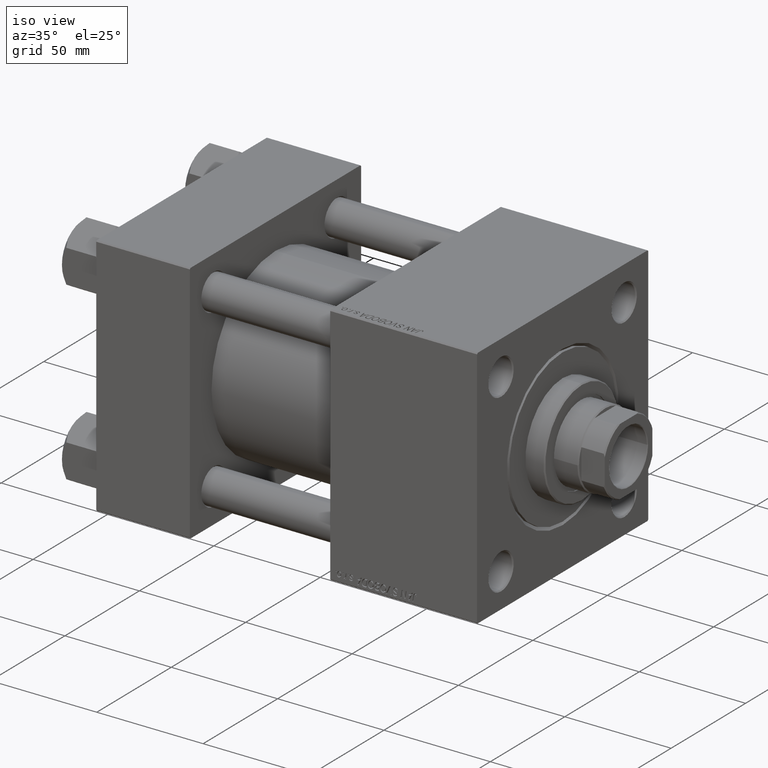
[diagram: clean part render]
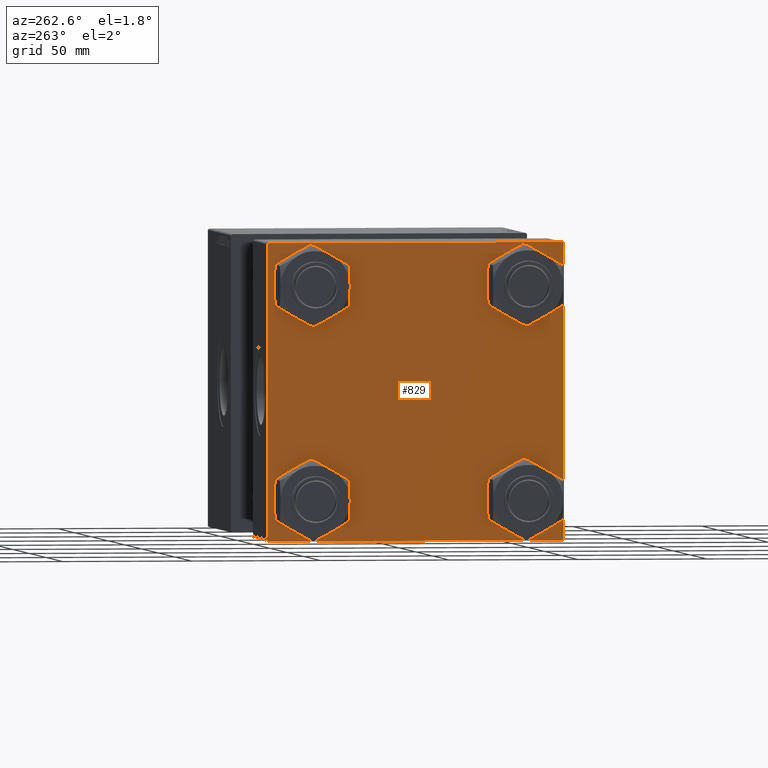
[diagram: tour spotlight — one face highlighted and labeled with its STEP entity id]
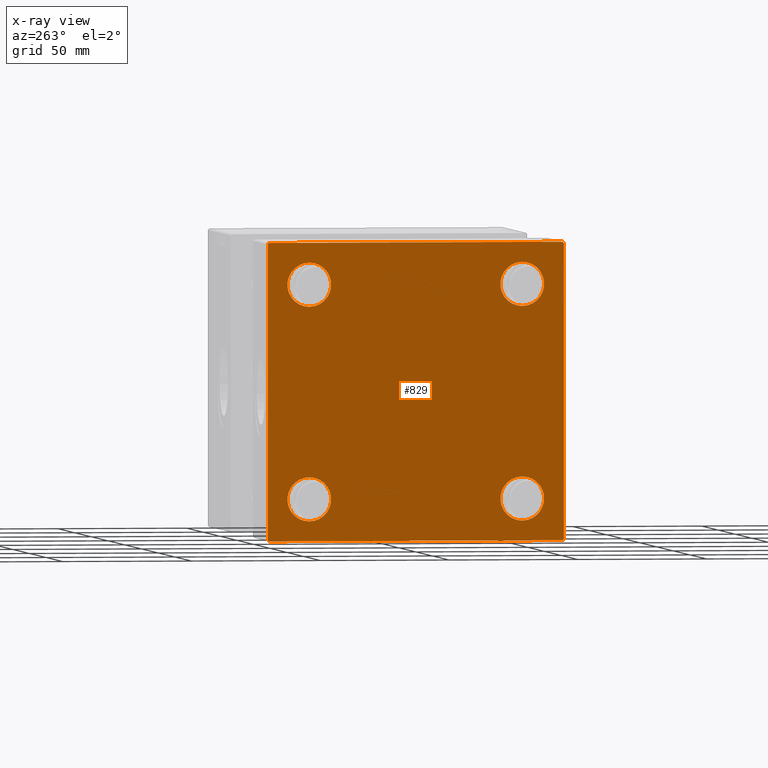
[diagram: x-ray of the same camera — body ghosted, this tour face saturated]
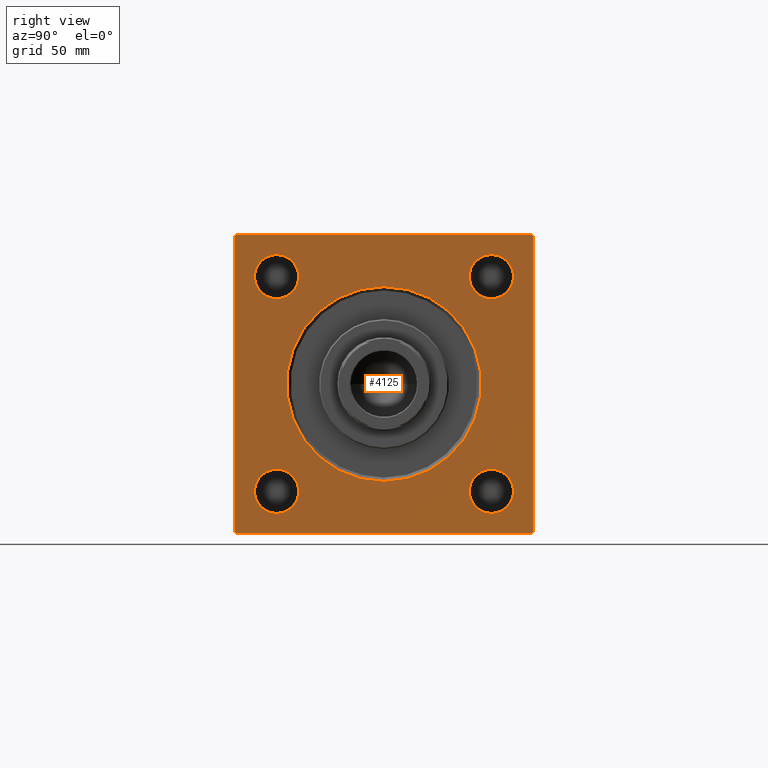
[diagram: tour spotlight — one face highlighted and labeled with its STEP entity id]
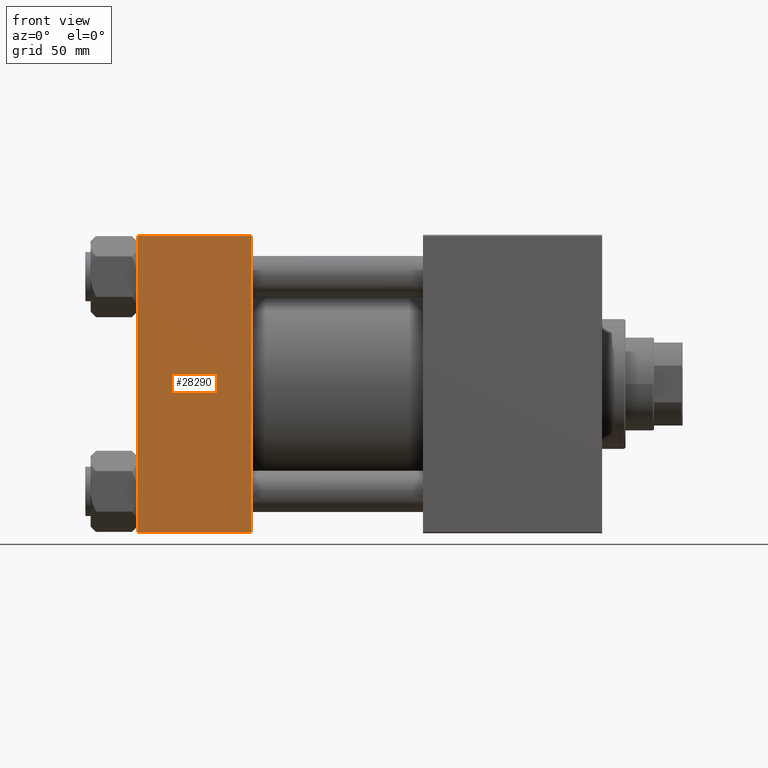
[diagram: tour spotlight — one face highlighted and labeled with its STEP entity id]
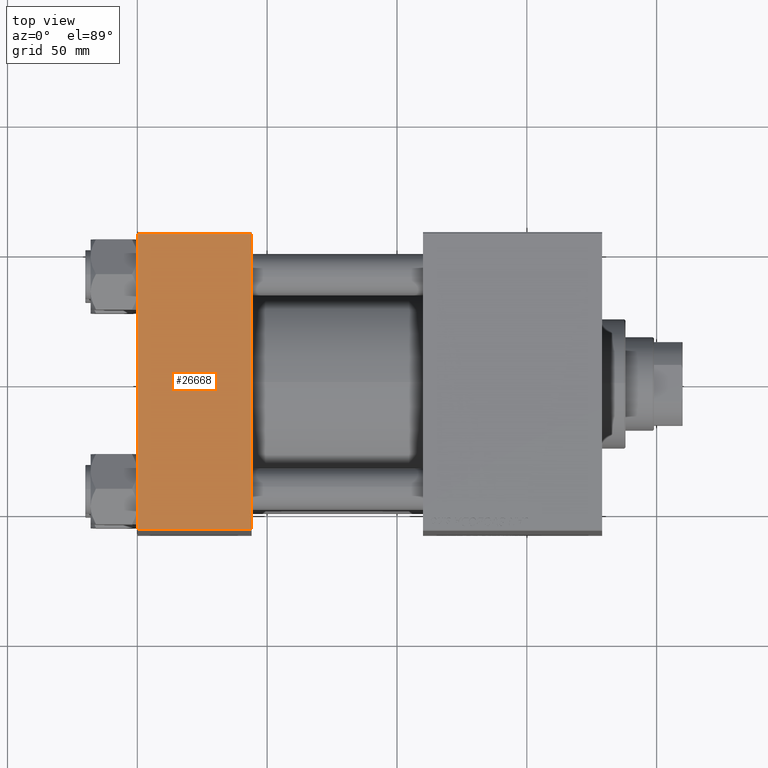
[diagram: tour spotlight — one face highlighted and labeled with its STEP entity id]
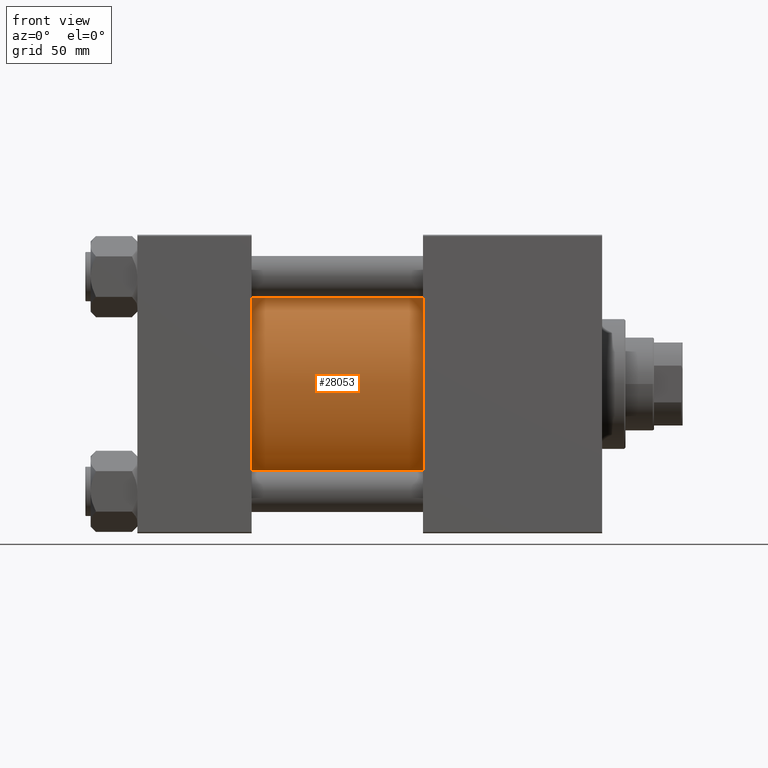
[diagram: tour spotlight — one face highlighted and labeled with its STEP entity id]
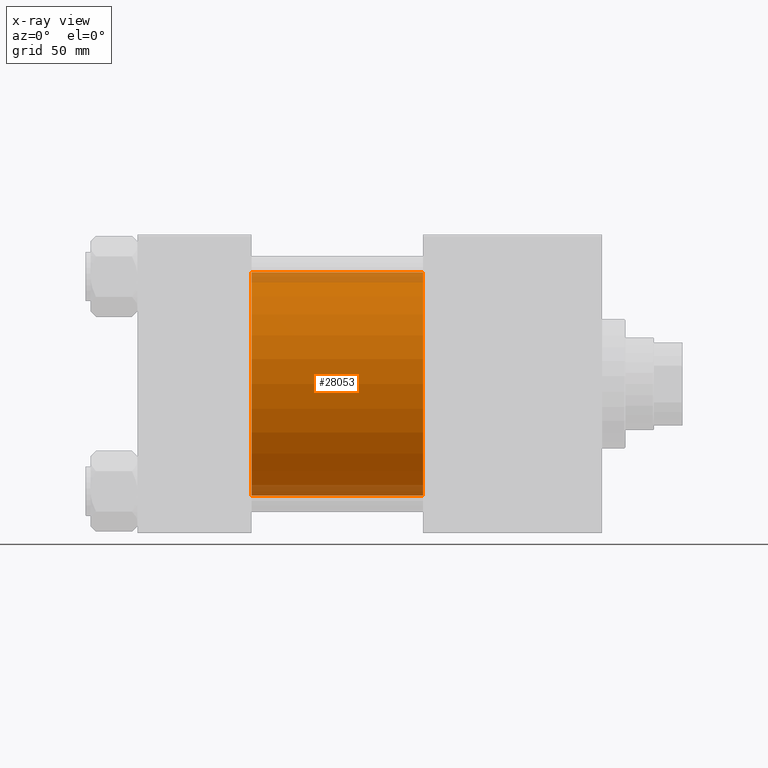
[diagram: x-ray of the same camera — body ghosted, this tour face saturated]
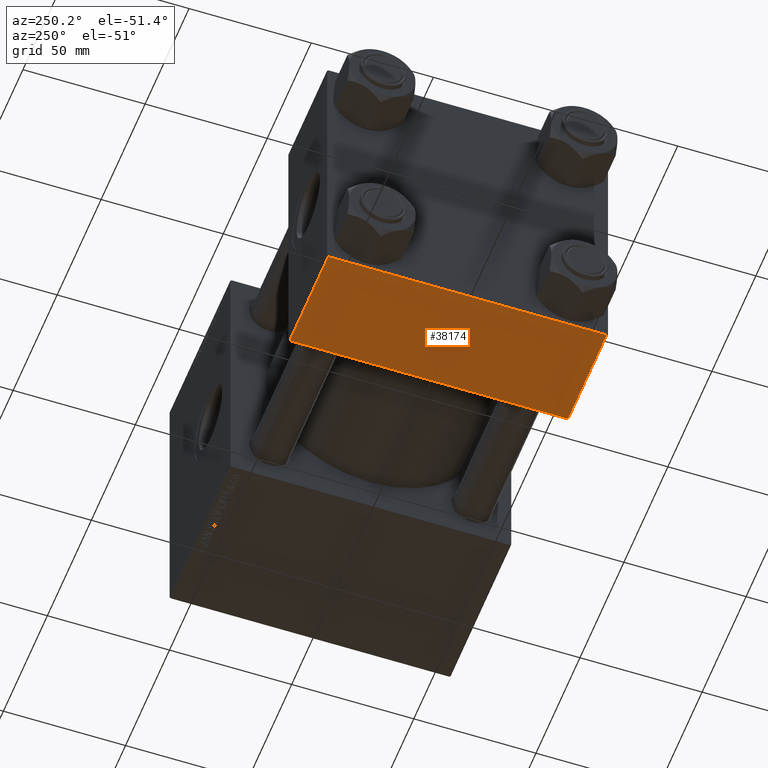
[diagram: tour spotlight — one face highlighted and labeled with its STEP entity id]
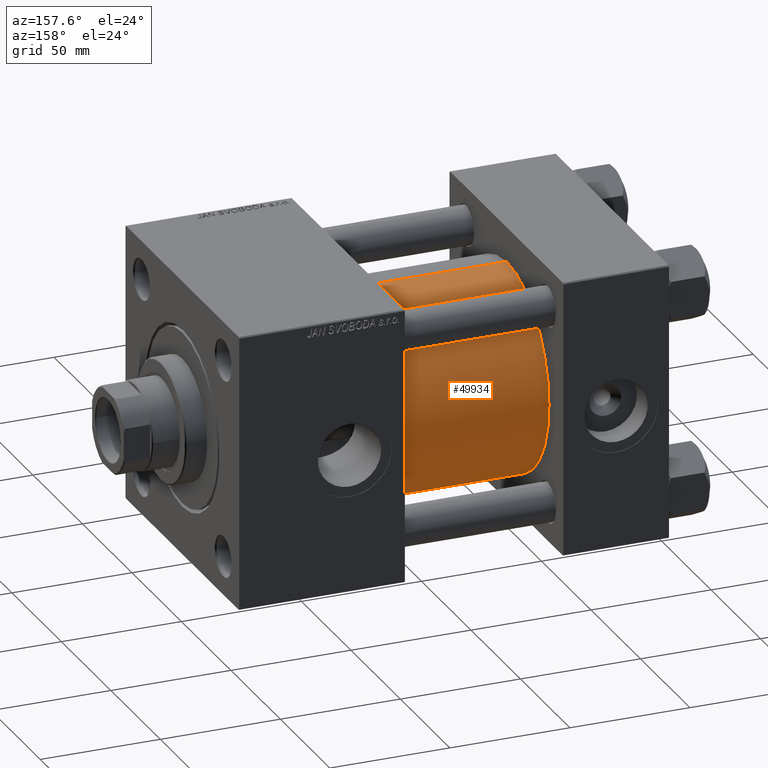
[diagram: tour spotlight — one face highlighted and labeled with its STEP entity id]
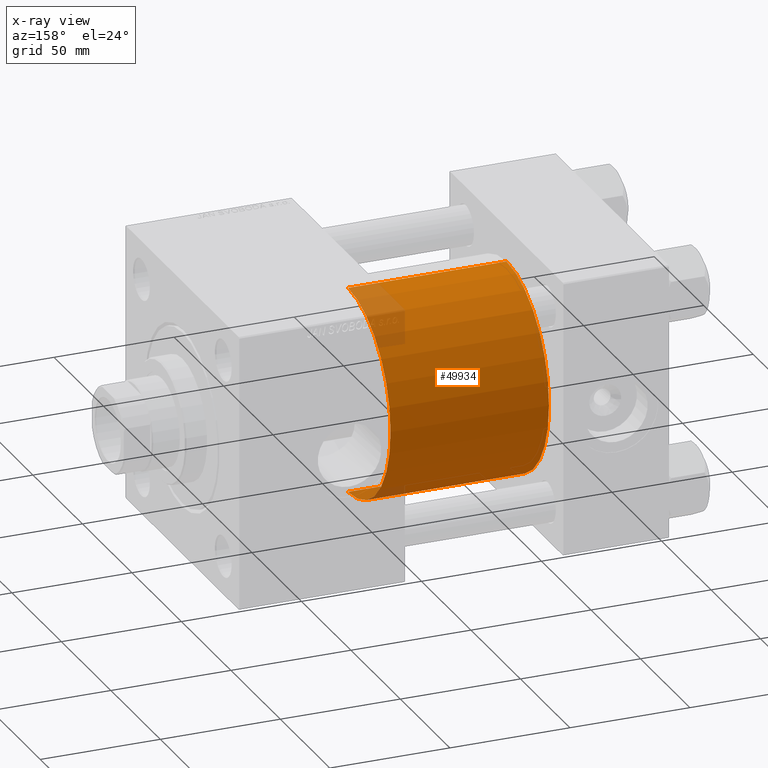
[diagram: x-ray of the same camera — body ghosted, this tour face saturated]
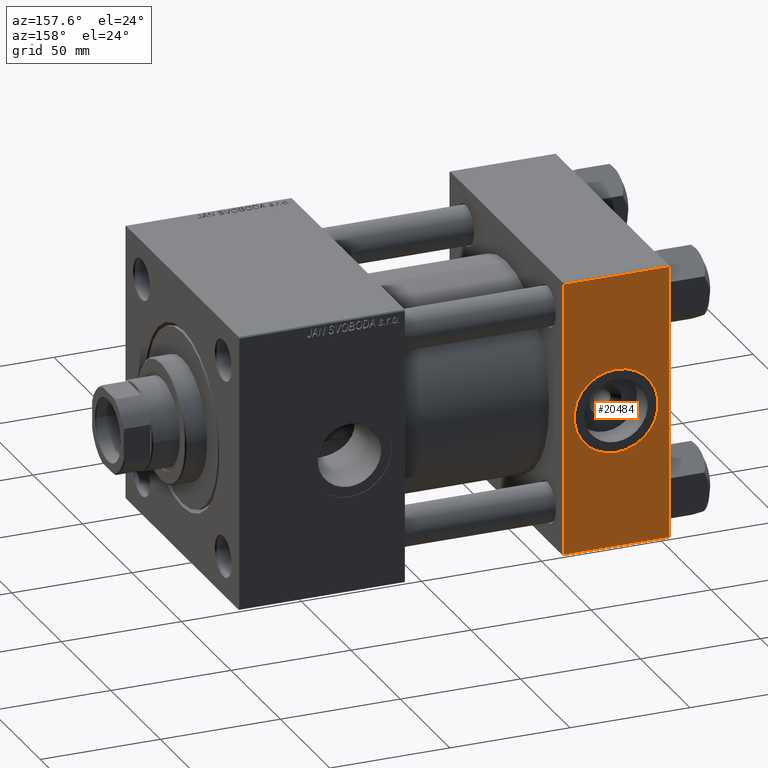
[diagram: tour spotlight — one face highlighted and labeled with its STEP entity id]
A machine part: a face-by-face anatomy tour. The part has 1197 B-rep faces; the first image is the clean iso view, then the 8 largest visible faces are spotlighted one at a time (largest first), each with its STEP entity span.

Face 1 — auxiliary view, entity #829. An x-ray twin of the same camera follows (body ghosted, this face saturated) — the face is partly hidden behind the body. In plain terms, the highlighted planar face has unit normal (-1, 0, 0).
Definition (entity closure, byte-faithful):
#829 = ADVANCED_FACE ( 'NONE', ( #16518, #35483, #8340, #27812, #20615 ), #12674, .T. ) ;
#1407 = CARTESIAN_POINT ( 'NONE',  ( 0.000000000000000000, -57.50000000000000711, 57.00000000000000711 ) ) ;
#2250 = CARTESIAN_POINT ( 'NONE',  ( 0.000000000000000000, 57.24999999999922551, 57.25000000000081712 ) ) ;
#2461 = VERTEX_POINT ( 'NONE', #18365 ) ;
#2817 = DIRECTION ( 'NONE',  ( 1.000000000000000000, -0.000000000000000000, 0.000000000000000000 ) ) ;
#2927 = CARTESIAN_POINT ( 'NONE',  ( 0.000000000000000000, 57.49999999999999289, -57.00000000000000711 ) ) ;
#3084 = LINE ( 'NONE', #49172, #45154 ) ;
#3290 = VERTEX_POINT ( 'NONE', #7614 ) ;
#3292 = VECTOR ( 'NONE', #22487, 1000.000000000000114 ) ;
#4149 = VECTOR ( 'NONE', #17508, 1000.000000000000114 ) ;
#4488 = VECTOR ( 'NONE', #36090, 1000.000000000000114 ) ;
#4592 = VERTEX_POINT ( 'NONE', #20257 ) ;
#5037 = VERTEX_POINT ( 'NONE', #35510 ) ;
#5469 = AXIS2_PLACEMENT_3D ( 'NONE', #20466, #20719, #36334 ) ;
#5670 = EDGE_CURVE ( 'NONE', #48807, #3290, #8379, .T. ) ;
#5684 = EDGE_CURVE ( 'NONE', #20753, #21373, #3084, .T. ) ;
#5722 = CARTESIAN_POINT ( 'NONE',  ( 0.000000000000000000, 41.34999999999999432, -41.35000000000000142 ) ) ;
#6301 = EDGE_CURVE ( 'NONE', #4592, #2461, #28816, .T. ) ;
#6416 = DIRECTION ( 'NONE',  ( 0.000000000000000000, 0.000000000000000000, -1.000000000000000000 ) ) ;
#6632 = VERTEX_POINT ( 'NONE', #2927 ) ;
#6908 = CARTESIAN_POINT ( 'NONE',  ( 0.000000000000000000, -57.50000000000000711, -57.00000000000000711 ) ) ;
#6918 = DIRECTION ( 'NONE',  ( 0.000000000000000000, 0.000000000000000000, 1.000000000000000000 ) ) ;
#6927 = DIRECTION ( 'NONE',  ( 0.000000000000000000, -1.000000000000000000, -1.206764157201257045E-16 ) ) ;
#7360 = CARTESIAN_POINT ( 'NONE',  ( 0.000000000000000000, -41.34999999999998721, 32.85000000000001563 ) ) ;
#7614 = CARTESIAN_POINT ( 'NONE',  ( 0.000000000000000000, 41.34999999999999432, 49.85000000000000142 ) ) ;
#8340 = FACE_BOUND ( 'NONE', #35983, .T. ) ;
#8379 = CIRCLE ( 'NONE', #15738, 8.499999999999992895 ) ;
#8813 = EDGE_LOOP ( 'NONE', ( #20668, #30820 ) ) ;
#9115 = CARTESIAN_POINT ( 'NONE',  ( 0.000000000000000000, 57.00000000000000711, 57.50000000000000711 ) ) ;
#9577 = LINE ( 'NONE', #14427, #4149 ) ;
#9753 = AXIS2_PLACEMENT_3D ( 'NONE', #19494, #38700, #23341 ) ;
#10264 = VERTEX_POINT ( 'NONE', #36802 ) ;
#10331 = VERTEX_POINT ( 'NONE', #41143 ) ;
#11086 = EDGE_CURVE ( 'NONE', #10264, #45898, #21600, .T. ) ;
#11926 = CARTESIAN_POINT ( 'NONE',  ( 0.000000000000000000, 0.000000000000000000, 0.000000000000000000 ) ) ;
#11936 = EDGE_CURVE ( 'NONE', #41908, #6632, #48390, .T. ) ;
#12674 = PLANE ( 'NONE',  #45117 ) ;
#12787 = CARTESIAN_POINT ( 'NONE',  ( 0.000000000000000000, 57.25000000000081712, -57.24999999999922551 ) ) ;
#12801 = DIRECTION ( 'NONE',  ( 0.000000000000000000, -1.000000000000000000, -1.206764157201257045E-16 ) ) ;
#13311 = DIRECTION ( 'NONE',  ( 0.000000000000000000, 0.000000000000000000, 1.000000000000000000 ) ) ;
#13322 = EDGE_CURVE ( 'NONE', #6632, #5037, #35832, .T. ) ;
#13536 = LINE ( 'NONE', #2250, #3292 ) ;
#14257 = VECTOR ( 'NONE', #36876, 1000.000000000000000 ) ;
#14356 = DIRECTION ( 'NONE',  ( 0.000000000000000000, 0.000000000000000000, 1.000000000000000000 ) ) ;
#14427 = CARTESIAN_POINT ( 'NONE',  ( 0.000000000000000000, -57.25000000000000711, -57.25000000000000711 ) ) ;
#14542 = LINE ( 'NONE', #22223, #38273 ) ;
#15403 = EDGE_CURVE ( 'NONE', #2461, #4592, #25665, .T. ) ;
#15738 = AXIS2_PLACEMENT_3D ( 'NONE', #22549, #22809, #14356 ) ;
#15876 = ORIENTED_EDGE ( 'NONE', *, *, #23149, .T. ) ;
#16174 = DIRECTION ( 'NONE',  ( 0.000000000000000000, 0.000000000000000000, 1.000000000000000000 ) ) ;
#16187 = EDGE_CURVE ( 'NONE', #5037, #34902, #30997, .T. ) ;
#16424 = CARTESIAN_POINT ( 'NONE',  ( 0.000000000000000000, -41.34999999999998721, -41.35000000000000853 ) ) ;
#16518 = FACE_BOUND ( 'NONE', #8813, .T. ) ;
#17508 = DIRECTION ( 'NONE',  ( 0.000000000000000000, -0.7071067811865474617, 0.7071067811865474617 ) ) ;
#18206 = ORIENTED_EDGE ( 'NONE', *, *, #35855, .T. ) ;
#18365 = CARTESIAN_POINT ( 'NONE',  ( 0.000000000000000000, -41.34999999999998721, -32.85000000000001563 ) ) ;
#19494 = CARTESIAN_POINT ( 'NONE',  ( 0.000000000000000000, -41.34999999999998721, 41.35000000000000853 ) ) ;
#19671 = EDGE_LOOP ( 'NONE', ( #20243, #24587, #44166, #18206, #50514, #34537, #38336, #21283 ) ) ;
#20243 = ORIENTED_EDGE ( 'NONE', *, *, #11936, .T. ) ;
#20257 = CARTESIAN_POINT ( 'NONE',  ( 0.000000000000000000, -41.34999999999998721, -49.85000000000000853 ) ) ;
#20466 = CARTESIAN_POINT ( 'NONE',  ( 0.000000000000000000, 41.34999999999999432, 41.35000000000000142 ) ) ;
#20615 = FACE_OUTER_BOUND ( 'NONE', #19671, .T. ) ;
#20668 = ORIENTED_EDGE ( 'NONE', *, *, #11086, .T. ) ;
#20719 = DIRECTION ( 'NONE',  ( 1.000000000000000000, -0.000000000000000000, 0.000000000000000000 ) ) ;
#20753 = VERTEX_POINT ( 'NONE', #1407 ) ;
#21257 = CARTESIAN_POINT ( 'NONE',  ( 0.000000000000000000, 57.49999999999999289, 57.50000000000000711 ) ) ;
#21283 = ORIENTED_EDGE ( 'NONE', *, *, #34139, .T. ) ;
#21373 = VERTEX_POINT ( 'NONE', #6908 ) ;
#21600 = CIRCLE ( 'NONE', #49380, 8.499999999999992895 ) ;
#22223 = CARTESIAN_POINT ( 'NONE',  ( -0.000000000000000000, -57.25000000000081712, 57.24999999999922551 ) ) ;
#22487 = DIRECTION ( 'NONE',  ( 0.000000000000000000, 0.7071067811865573427, -0.7071067811865376918 ) ) ;
#22549 = CARTESIAN_POINT ( 'NONE',  ( 0.000000000000000000, 41.34999999999999432, 41.35000000000000142 ) ) ;
#22712 = ORIENTED_EDGE ( 'NONE', *, *, #15403, .T. ) ;
#22809 = DIRECTION ( 'NONE',  ( 1.000000000000000000, -0.000000000000000000, 0.000000000000000000 ) ) ;
#22969 = DIRECTION ( 'NONE',  ( 1.000000000000000000, -0.000000000000000000, 0.000000000000000000 ) ) ;
#23149 = EDGE_CURVE ( 'NONE', #3290, #48807, #29171, .T. ) ;
#23341 = DIRECTION ( 'NONE',  ( 0.000000000000000000, 0.000000000000000000, 1.000000000000000000 ) ) ;
#24587 = ORIENTED_EDGE ( 'NONE', *, *, #13322, .T. ) ;
#25059 = EDGE_CURVE ( 'NONE', #20753, #38884, #14542, .T. ) ;
#25200 = VERTEX_POINT ( 'NONE', #9115 ) ;
#25665 = CIRCLE ( 'NONE', #37216, 8.499999999999992895 ) ;
#26637 = CARTESIAN_POINT ( 'NONE',  ( 0.000000000000000000, -41.34999999999998721, -41.35000000000000853 ) ) ;
#27812 = FACE_BOUND ( 'NONE', #40156, .T. ) ;
#28306 = DIRECTION ( 'NONE',  ( -0.000000000000000000, 0.000000000000000000, 1.000000000000000000 ) ) ;
#28580 = CIRCLE ( 'NONE', #9753, 8.499999999999992895 ) ;
#28816 = CIRCLE ( 'NONE', #37800, 8.499999999999992895 ) ;
#29171 = CIRCLE ( 'NONE', #5469, 8.499999999999992895 ) ;
#30123 = EDGE_LOOP ( 'NONE', ( #22712, #47918 ) ) ;
#30820 = ORIENTED_EDGE ( 'NONE', *, *, #32986, .T. ) ;
#30986 = CARTESIAN_POINT ( 'NONE',  ( 0.000000000000000000, 57.49999999999999289, 57.00000000000003553 ) ) ;
#30997 = LINE ( 'NONE', #42766, #35495 ) ;
#31317 = DIRECTION ( 'NONE',  ( 1.000000000000000000, -0.000000000000000000, 0.000000000000000000 ) ) ;
#32141 = DIRECTION ( 'NONE',  ( -1.000000000000000000, 0.000000000000000000, -0.000000000000000000 ) ) ;
#32401 = EDGE_CURVE ( 'NONE', #32751, #10331, #32630, .T. ) ;
#32630 = CIRCLE ( 'NONE', #36730, 8.499999999999992895 ) ;
#32751 = VERTEX_POINT ( 'NONE', #48209 ) ;
#32865 = DIRECTION ( 'NONE',  ( 1.000000000000000000, -0.000000000000000000, 0.000000000000000000 ) ) ;
#32986 = EDGE_CURVE ( 'NONE', #45898, #10264, #28580, .T. ) ;
#33419 = CIRCLE ( 'NONE', #47351, 8.499999999999992895 ) ;
#34139 = EDGE_CURVE ( 'NONE', #25200, #41908, #13536, .T. ) ;
#34291 = CARTESIAN_POINT ( 'NONE',  ( 0.000000000000000000, -57.00000000000003553, 57.49999999999999289 ) ) ;
#34537 = ORIENTED_EDGE ( 'NONE', *, *, #25059, .T. ) ;
#34902 = VERTEX_POINT ( 'NONE', #37469 ) ;
#35483 = FACE_BOUND ( 'NONE', #30123, .T. ) ;
#35495 = VECTOR ( 'NONE', #6927, 1000.000000000000000 ) ;
#35510 = CARTESIAN_POINT ( 'NONE',  ( 0.000000000000000000, 57.00000000000002132, -57.49999999999999289 ) ) ;
#35832 = LINE ( 'NONE', #12787, #4488 ) ;
#35855 = EDGE_CURVE ( 'NONE', #34902, #21373, #9577, .T. ) ;
#35983 = EDGE_LOOP ( 'NONE', ( #46324, #37047 ) ) ;
#36090 = DIRECTION ( 'NONE',  ( -0.000000000000000000, -0.7071067811865376918, -0.7071067811865573427 ) ) ;
#36334 = DIRECTION ( 'NONE',  ( 0.000000000000000000, 0.000000000000000000, 1.000000000000000000 ) ) ;
#36344 = DIRECTION ( 'NONE',  ( 1.000000000000000000, -0.000000000000000000, 0.000000000000000000 ) ) ;
#36603 = CARTESIAN_POINT ( 'NONE',  ( 0.000000000000000000, -41.34999999999998721, 41.35000000000000853 ) ) ;
#36730 = AXIS2_PLACEMENT_3D ( 'NONE', #42431, #22969, #50364 ) ;
#36802 = CARTESIAN_POINT ( 'NONE',  ( 0.000000000000000000, -41.34999999999998721, 49.85000000000000853 ) ) ;
#36876 = DIRECTION ( 'NONE',  ( 0.000000000000000000, 0.000000000000000000, -1.000000000000000000 ) ) ;
#37047 = ORIENTED_EDGE ( 'NONE', *, *, #47195, .T. ) ;
#37216 = AXIS2_PLACEMENT_3D ( 'NONE', #26637, #2817, #6918 ) ;
#37469 = CARTESIAN_POINT ( 'NONE',  ( 0.000000000000000000, -57.00000000000000711, -57.50000000000000711 ) ) ;
#37800 = AXIS2_PLACEMENT_3D ( 'NONE', #16424, #31317, #16174 ) ;
#38273 = VECTOR ( 'NONE', #46305, 1000.000000000000114 ) ;
#38336 = ORIENTED_EDGE ( 'NONE', *, *, #40716, .F. ) ;
#38661 = VECTOR ( 'NONE', #12801, 1000.000000000000000 ) ;
#38700 = DIRECTION ( 'NONE',  ( 1.000000000000000000, -0.000000000000000000, 0.000000000000000000 ) ) ;
#38884 = VERTEX_POINT ( 'NONE', #34291 ) ;
#39572 = ORIENTED_EDGE ( 'NONE', *, *, #5670, .T. ) ;
#39694 = LINE ( 'NONE', #47392, #38661 ) ;
#40156 = EDGE_LOOP ( 'NONE', ( #15876, #39572 ) ) ;
#40716 = EDGE_CURVE ( 'NONE', #25200, #38884, #39694, .T. ) ;
#41143 = CARTESIAN_POINT ( 'NONE',  ( 0.000000000000000000, 41.34999999999999432, -49.85000000000000142 ) ) ;
#41908 = VERTEX_POINT ( 'NONE', #30986 ) ;
#42431 = CARTESIAN_POINT ( 'NONE',  ( 0.000000000000000000, 41.34999999999999432, -41.35000000000000142 ) ) ;
#42766 = CARTESIAN_POINT ( 'NONE',  ( 0.000000000000000000, 57.49999999999999289, -57.49999999999999289 ) ) ;
#44166 = ORIENTED_EDGE ( 'NONE', *, *, #16187, .T. ) ;
#44191 = CARTESIAN_POINT ( 'NONE',  ( 0.000000000000000000, 41.34999999999999432, 32.85000000000000853 ) ) ;
#45117 = AXIS2_PLACEMENT_3D ( 'NONE', #11926, #32141, #28306 ) ;
#45154 = VECTOR ( 'NONE', #6416, 1000.000000000000000 ) ;
#45898 = VERTEX_POINT ( 'NONE', #7360 ) ;
#46305 = DIRECTION ( 'NONE',  ( -0.000000000000000000, 0.7071067811865376918, 0.7071067811865573427 ) ) ;
#46324 = ORIENTED_EDGE ( 'NONE', *, *, #32401, .T. ) ;
#47195 = EDGE_CURVE ( 'NONE', #10331, #32751, #33419, .T. ) ;
#47351 = AXIS2_PLACEMENT_3D ( 'NONE', #5722, #32865, #48228 ) ;
#47392 = CARTESIAN_POINT ( 'NONE',  ( 0.000000000000000000, 57.49999999999999289, 57.50000000000000711 ) ) ;
#47918 = ORIENTED_EDGE ( 'NONE', *, *, #6301, .T. ) ;
#48209 = CARTESIAN_POINT ( 'NONE',  ( 0.000000000000000000, 41.34999999999999432, -32.85000000000000853 ) ) ;
#48228 = DIRECTION ( 'NONE',  ( 0.000000000000000000, 0.000000000000000000, 1.000000000000000000 ) ) ;
#48390 = LINE ( 'NONE', #21257, #14257 ) ;
#48807 = VERTEX_POINT ( 'NONE', #44191 ) ;
#49172 = CARTESIAN_POINT ( 'NONE',  ( 0.000000000000000000, -57.50000000000000711, 57.49999999999999289 ) ) ;
#49380 = AXIS2_PLACEMENT_3D ( 'NONE', #36603, #36344, #13311 ) ;
#50364 = DIRECTION ( 'NONE',  ( 0.000000000000000000, 0.000000000000000000, 1.000000000000000000 ) ) ;
#50514 = ORIENTED_EDGE ( 'NONE', *, *, #5684, .F. ) ;

Face 2 — right view, entity #4125. In plain terms, the highlighted planar face has unit normal (-1, 0, 0).
Definition (entity closure, byte-faithful):
#161 = ORIENTED_EDGE ( 'NONE', *, *, #1508, .T. ) ;
#514 = DIRECTION ( 'NONE',  ( -1.000000000000000000, 0.000000000000000000, -0.000000000000000000 ) ) ;
#628 = AXIS2_PLACEMENT_3D ( 'NONE', #4188, #36429, #35431 ) ;
#658 = FACE_BOUND ( 'NONE', #18779, .T. ) ;
#874 = EDGE_LOOP ( 'NONE', ( #18072, #12980 ) ) ;
#890 = VERTEX_POINT ( 'NONE', #20360 ) ;
#910 = FACE_OUTER_BOUND ( 'NONE', #37507, .T. ) ;
#1168 = DIRECTION ( 'NONE',  ( -0.000000000000000000, 0.000000000000000000, 1.000000000000000000 ) ) ;
#1508 = EDGE_CURVE ( 'NONE', #28676, #27132, #21126, .T. ) ;
#1887 = CARTESIAN_POINT ( 'NONE',  ( 179.0000000000000000, -57.49999999999999289, 56.99999999999996447 ) ) ;
#1898 = VERTEX_POINT ( 'NONE', #2865 ) ;
#2089 = EDGE_CURVE ( 'NONE', #11114, #37097, #41793, .T. ) ;
#2286 = VECTOR ( 'NONE', #13663, 1000.000000000000000 ) ;
#2865 = CARTESIAN_POINT ( 'NONE',  ( 179.0000000000000000, -57.49999999999999289, 56.99999999999996447 ) ) ;
#3075 = CARTESIAN_POINT ( 'NONE',  ( 179.0000000000000000, 57.50000000000000000, 57.50000000000000711 ) ) ;
#3608 = EDGE_CURVE ( 'NONE', #37097, #11114, #39370, .T. ) ;
#3662 = EDGE_CURVE ( 'NONE', #34562, #31207, #21771, .T. ) ;
#3984 = AXIS2_PLACEMENT_3D ( 'NONE', #18090, #48567, #31397 ) ;
#4018 = FACE_BOUND ( 'NONE', #32951, .T. ) ;
#4105 = CARTESIAN_POINT ( 'NONE',  ( 179.0000000000000000, -41.34999999999999432, 49.85000000000006537 ) ) ;
#4125 = ADVANCED_FACE ( 'NONE', ( #4752, #658, #31658, #4018, #20381, #910 ), #28324, .F. ) ;
#4188 = CARTESIAN_POINT ( 'NONE',  ( 179.0000000000000000, -41.34999999999999432, -41.35000000000000142 ) ) ;
#4537 = VERTEX_POINT ( 'NONE', #28518 ) ;
#4709 = AXIS2_PLACEMENT_3D ( 'NONE', #30314, #50271, #45934 ) ;
#4752 = FACE_BOUND ( 'NONE', #38293, .T. ) ;
#5287 = CARTESIAN_POINT ( 'NONE',  ( 179.0000000000000000, -56.99999999999995737, -57.49999999999997868 ) ) ;
#6669 = DIRECTION ( 'NONE',  ( -1.000000000000000000, 0.000000000000000000, -0.000000000000000000 ) ) ;
#6853 = EDGE_CURVE ( 'NONE', #11911, #37130, #47700, .T. ) ;
#7425 = CARTESIAN_POINT ( 'NONE',  ( 179.0000000000000000, -41.34999999999999432, 32.84999999999994458 ) ) ;
#8266 = AXIS2_PLACEMENT_3D ( 'NONE', #43542, #514, #48389 ) ;
#8310 = AXIS2_PLACEMENT_3D ( 'NONE', #8856, #20633, #1168 ) ;
#8789 = CARTESIAN_POINT ( 'NONE',  ( 179.0000000000000000, -41.34999999999999432, -32.84999999999994458 ) ) ;
#8856 = CARTESIAN_POINT ( 'NONE',  ( 179.0000000000000000, 0.000000000000000000, 0.000000000000000000 ) ) ;
#8898 = DIRECTION ( 'NONE',  ( 0.000000000000000000, -0.7071067811865672237, 0.7071067811865279218 ) ) ;
#8934 = EDGE_CURVE ( 'NONE', #49391, #13215, #17439, .T. ) ;
#9149 = LINE ( 'NONE', #28364, #25947 ) ;
#9220 = CARTESIAN_POINT ( 'NONE',  ( 179.0000000000000000, 57.00000000000000000, -57.49999999999996447 ) ) ;
#10287 = VERTEX_POINT ( 'NONE', #17335 ) ;
#10510 = CARTESIAN_POINT ( 'NONE',  ( 179.0000000000000000, -41.34999999999999432, 41.35000000000000142 ) ) ;
#10851 = CARTESIAN_POINT ( 'NONE',  ( 179.0000000000000000, -57.49999999999999289, 57.49999999999999289 ) ) ;
#11114 = VERTEX_POINT ( 'NONE', #37364 ) ;
#11911 = VERTEX_POINT ( 'NONE', #9220 ) ;
#12980 = ORIENTED_EDGE ( 'NONE', *, *, #34070, .T. ) ;
#13215 = VERTEX_POINT ( 'NONE', #4105 ) ;
#13663 = DIRECTION ( 'NONE',  ( -0.000000000000000000, -0.7071067811865328068, -0.7071067811865622277 ) ) ;
#13716 = CIRCLE ( 'NONE', #4709, 8.500000000000063949 ) ;
#14552 = CARTESIAN_POINT ( 'NONE',  ( 179.0000000000000000, 0.000000000000000000, 0.000000000000000000 ) ) ;
#14914 = VERTEX_POINT ( 'NONE', #8789 ) ;
#15506 = CARTESIAN_POINT ( 'NONE',  ( 179.0000000000000000, 56.99999999999997158, 57.50000000000000711 ) ) ;
#15585 = EDGE_CURVE ( 'NONE', #11911, #27132, #47844, .T. ) ;
#16480 = EDGE_CURVE ( 'NONE', #45649, #27178, #20752, .T. ) ;
#17224 = VECTOR ( 'NONE', #36484, 1000.000000000000000 ) ;
#17225 = CARTESIAN_POINT ( 'NONE',  ( 179.0000000000000000, 57.50000000000000000, -56.99999999999994316 ) ) ;
#17327 = CARTESIAN_POINT ( 'NONE',  ( 179.0000000000000000, 41.34999999999999432, -49.85000000000006537 ) ) ;
#17335 = CARTESIAN_POINT ( 'NONE',  ( 179.0000000000000000, 57.50000000000000000, 57.00000000000000711 ) ) ;
#17439 = CIRCLE ( 'NONE', #46079, 8.500000000000063949 ) ;
#17814 = ORIENTED_EDGE ( 'NONE', *, *, #36024, .T. ) ;
#18072 = ORIENTED_EDGE ( 'NONE', *, *, #34539, .T. ) ;
#18090 = CARTESIAN_POINT ( 'NONE',  ( 179.0000000000000000, -41.34999999999999432, 41.35000000000000142 ) ) ;
#18311 = AXIS2_PLACEMENT_3D ( 'NONE', #23001, #50392, #38852 ) ;
#18779 = EDGE_LOOP ( 'NONE', ( #47866, #45322 ) ) ;
#19702 = CARTESIAN_POINT ( 'NONE',  ( 179.0000000000000000, 57.50000000000000000, -57.49999999999996447 ) ) ;
#19743 = VECTOR ( 'NONE', #46109, 1000.000000000000000 ) ;
#19829 = DIRECTION ( 'NONE',  ( -1.000000000000000000, 0.000000000000000000, -0.000000000000000000 ) ) ;
#20360 = CARTESIAN_POINT ( 'NONE',  ( 179.0000000000000000, 0.000000000000000000, -37.50000000000000711 ) ) ;
#20381 = FACE_BOUND ( 'NONE', #874, .T. ) ;
#20633 = DIRECTION ( 'NONE',  ( -1.000000000000000000, 0.000000000000000000, -0.000000000000000000 ) ) ;
#20752 = CIRCLE ( 'NONE', #18311, 8.500000000000063949 ) ;
#21126 = LINE ( 'NONE', #35979, #17224 ) ;
#21264 = CIRCLE ( 'NONE', #49896, 37.50000000000000711 ) ;
#21771 = LINE ( 'NONE', #3075, #19743 ) ;
#21794 = CARTESIAN_POINT ( 'NONE',  ( 179.0000000000000000, -41.34999999999999432, -41.35000000000000142 ) ) ;
#22466 = ORIENTED_EDGE ( 'NONE', *, *, #16480, .T. ) ;
#23001 = CARTESIAN_POINT ( 'NONE',  ( 179.0000000000000000, 41.34999999999999432, -41.35000000000000142 ) ) ;
#23137 = EDGE_LOOP ( 'NONE', ( #46066, #25269 ) ) ;
#24241 = ORIENTED_EDGE ( 'NONE', *, *, #6853, .T. ) ;
#24302 = EDGE_CURVE ( 'NONE', #10287, #34562, #9149, .T. ) ;
#25269 = ORIENTED_EDGE ( 'NONE', *, *, #29453, .T. ) ;
#25947 = VECTOR ( 'NONE', #8898, 1000.000000000000000 ) ;
#26340 = EDGE_CURVE ( 'NONE', #31207, #1898, #36721, .T. ) ;
#27095 = ORIENTED_EDGE ( 'NONE', *, *, #24302, .T. ) ;
#27132 = VERTEX_POINT ( 'NONE', #5287 ) ;
#27178 = VERTEX_POINT ( 'NONE', #17327 ) ;
#27485 = EDGE_CURVE ( 'NONE', #30418, #14914, #35875, .T. ) ;
#27767 = CARTESIAN_POINT ( 'NONE',  ( 179.0000000000000000, 57.50000000000000000, 57.50000000000000711 ) ) ;
#27775 = DIRECTION ( 'NONE',  ( 0.000000000000000000, 0.000000000000000000, 1.000000000000000000 ) ) ;
#27890 = EDGE_CURVE ( 'NONE', #13215, #49391, #30973, .T. ) ;
#28324 = PLANE ( 'NONE',  #8310 ) ;
#28364 = CARTESIAN_POINT ( 'NONE',  ( 179.0000000000000000, 56.99999999999997158, 57.50000000000000711 ) ) ;
#28518 = CARTESIAN_POINT ( 'NONE',  ( 179.0000000000000000, 4.592425496802575156E-15, 37.50000000000000711 ) ) ;
#28676 = VERTEX_POINT ( 'NONE', #33592 ) ;
#28743 = AXIS2_PLACEMENT_3D ( 'NONE', #43133, #19829, #27775 ) ;
#29453 = EDGE_CURVE ( 'NONE', #14914, #30418, #43998, .T. ) ;
#30310 = AXIS2_PLACEMENT_3D ( 'NONE', #30376, #34466, #31376 ) ;
#30314 = CARTESIAN_POINT ( 'NONE',  ( 179.0000000000000000, 41.34999999999999432, -41.35000000000000142 ) ) ;
#30376 = CARTESIAN_POINT ( 'NONE',  ( 179.0000000000000000, 0.000000000000000000, 0.000000000000000000 ) ) ;
#30418 = VERTEX_POINT ( 'NONE', #36765 ) ;
#30819 = LINE ( 'NONE', #10851, #36870 ) ;
#30973 = CIRCLE ( 'NONE', #3984, 8.500000000000063949 ) ;
#31207 = VERTEX_POINT ( 'NONE', #44731 ) ;
#31376 = DIRECTION ( 'NONE',  ( 0.000000000000000000, 0.000000000000000000, 1.000000000000000000 ) ) ;
#31397 = DIRECTION ( 'NONE',  ( 0.000000000000000000, 0.000000000000000000, 1.000000000000000000 ) ) ;
#31439 = CARTESIAN_POINT ( 'NONE',  ( 179.0000000000000000, 41.34999999999999432, 49.85000000000006537 ) ) ;
#31507 = ORIENTED_EDGE ( 'NONE', *, *, #2089, .T. ) ;
#31658 = FACE_BOUND ( 'NONE', #23137, .T. ) ;
#32951 = EDGE_LOOP ( 'NONE', ( #37661, #22466 ) ) ;
#33045 = ORIENTED_EDGE ( 'NONE', *, *, #3608, .T. ) ;
#33592 = CARTESIAN_POINT ( 'NONE',  ( 179.0000000000000000, -57.49999999999999289, -56.99999999999997868 ) ) ;
#34070 = EDGE_CURVE ( 'NONE', #4537, #890, #21264, .T. ) ;
#34466 = DIRECTION ( 'NONE',  ( -1.000000000000000000, 0.000000000000000000, -0.000000000000000000 ) ) ;
#34539 = EDGE_CURVE ( 'NONE', #890, #4537, #36842, .T. ) ;
#34562 = VERTEX_POINT ( 'NONE', #15506 ) ;
#34780 = VECTOR ( 'NONE', #40166, 1000.000000000000000 ) ;
#34939 = LINE ( 'NONE', #27767, #43684 ) ;
#35431 = DIRECTION ( 'NONE',  ( 0.000000000000000000, 0.000000000000000000, 1.000000000000000000 ) ) ;
#35875 = CIRCLE ( 'NONE', #44886, 8.500000000000063949 ) ;
#35979 = CARTESIAN_POINT ( 'NONE',  ( 179.0000000000000000, -56.99999999999995737, -57.49999999999997868 ) ) ;
#36014 = ORIENTED_EDGE ( 'NONE', *, *, #15585, .F. ) ;
#36024 = EDGE_CURVE ( 'NONE', #1898, #28676, #30819, .T. ) ;
#36429 = DIRECTION ( 'NONE',  ( -1.000000000000000000, 0.000000000000000000, -0.000000000000000000 ) ) ;
#36484 = DIRECTION ( 'NONE',  ( 0.000000000000000000, 0.7071067811865721087, -0.7071067811865230368 ) ) ;
#36721 = LINE ( 'NONE', #1887, #2286 ) ;
#36765 = CARTESIAN_POINT ( 'NONE',  ( 179.0000000000000000, -41.34999999999999432, -49.85000000000006537 ) ) ;
#36842 = CIRCLE ( 'NONE', #30310, 37.50000000000000711 ) ;
#36870 = VECTOR ( 'NONE', #38986, 1000.000000000000000 ) ;
#37097 = VERTEX_POINT ( 'NONE', #31439 ) ;
#37130 = VERTEX_POINT ( 'NONE', #42711 ) ;
#37337 = DIRECTION ( 'NONE',  ( -1.000000000000000000, 0.000000000000000000, -0.000000000000000000 ) ) ;
#37364 = CARTESIAN_POINT ( 'NONE',  ( 179.0000000000000000, 41.34999999999999432, 32.84999999999994458 ) ) ;
#37507 = EDGE_LOOP ( 'NONE', ( #17814, #161, #36014, #24241, #42938, #27095, #40692, #42162 ) ) ;
#37592 = DIRECTION ( 'NONE',  ( 0.000000000000000000, 0.000000000000000000, 1.000000000000000000 ) ) ;
#37661 = ORIENTED_EDGE ( 'NONE', *, *, #44832, .T. ) ;
#37671 = DIRECTION ( 'NONE',  ( 0.000000000000000000, 0.000000000000000000, 1.000000000000000000 ) ) ;
#38293 = EDGE_LOOP ( 'NONE', ( #31507, #33045 ) ) ;
#38852 = DIRECTION ( 'NONE',  ( 0.000000000000000000, 0.000000000000000000, 1.000000000000000000 ) ) ;
#38986 = DIRECTION ( 'NONE',  ( 0.000000000000000000, 0.000000000000000000, -1.000000000000000000 ) ) ;
#39280 = DIRECTION ( 'NONE',  ( 0.000000000000000000, 0.000000000000000000, -1.000000000000000000 ) ) ;
#39370 = CIRCLE ( 'NONE', #28743, 8.500000000000063949 ) ;
#40166 = DIRECTION ( 'NONE',  ( 0.000000000000000000, -1.000000000000000000, -1.206764157201257291E-16 ) ) ;
#40692 = ORIENTED_EDGE ( 'NONE', *, *, #3662, .T. ) ;
#41290 = EDGE_CURVE ( 'NONE', #10287, #37130, #34939, .T. ) ;
#41793 = CIRCLE ( 'NONE', #8266, 8.500000000000063949 ) ;
#42162 = ORIENTED_EDGE ( 'NONE', *, *, #26340, .T. ) ;
#42711 = CARTESIAN_POINT ( 'NONE',  ( 179.0000000000000000, 57.50000000000000000, -56.99999999999994316 ) ) ;
#42938 = ORIENTED_EDGE ( 'NONE', *, *, #41290, .F. ) ;
#43133 = CARTESIAN_POINT ( 'NONE',  ( 179.0000000000000000, 41.34999999999999432, 41.35000000000000142 ) ) ;
#43542 = CARTESIAN_POINT ( 'NONE',  ( 179.0000000000000000, 41.34999999999999432, 41.35000000000000142 ) ) ;
#43684 = VECTOR ( 'NONE', #39280, 1000.000000000000000 ) ;
#43998 = CIRCLE ( 'NONE', #628, 8.500000000000063949 ) ;
#44374 = DIRECTION ( 'NONE',  ( -0.000000000000000000, 0.7071067811865279218, 0.7071067811865672237 ) ) ;
#44731 = CARTESIAN_POINT ( 'NONE',  ( 179.0000000000000000, -56.99999999999998579, 57.49999999999999289 ) ) ;
#44832 = EDGE_CURVE ( 'NONE', #27178, #45649, #13716, .T. ) ;
#44886 = AXIS2_PLACEMENT_3D ( 'NONE', #21794, #49186, #37671 ) ;
#45322 = ORIENTED_EDGE ( 'NONE', *, *, #27890, .T. ) ;
#45342 = DIRECTION ( 'NONE',  ( 0.000000000000000000, 0.000000000000000000, 1.000000000000000000 ) ) ;
#45649 = VERTEX_POINT ( 'NONE', #47093 ) ;
#45934 = DIRECTION ( 'NONE',  ( 0.000000000000000000, 0.000000000000000000, 1.000000000000000000 ) ) ;
#46013 = VECTOR ( 'NONE', #44374, 1000.000000000000000 ) ;
#46066 = ORIENTED_EDGE ( 'NONE', *, *, #27485, .T. ) ;
#46079 = AXIS2_PLACEMENT_3D ( 'NONE', #10510, #6669, #45342 ) ;
#46109 = DIRECTION ( 'NONE',  ( 0.000000000000000000, -1.000000000000000000, -1.206764157201257291E-16 ) ) ;
#47093 = CARTESIAN_POINT ( 'NONE',  ( 179.0000000000000000, 41.34999999999999432, -32.84999999999994458 ) ) ;
#47700 = LINE ( 'NONE', #17225, #46013 ) ;
#47844 = LINE ( 'NONE', #19702, #34780 ) ;
#47866 = ORIENTED_EDGE ( 'NONE', *, *, #8934, .T. ) ;
#48389 = DIRECTION ( 'NONE',  ( 0.000000000000000000, 0.000000000000000000, 1.000000000000000000 ) ) ;
#48567 = DIRECTION ( 'NONE',  ( -1.000000000000000000, 0.000000000000000000, -0.000000000000000000 ) ) ;
#49186 = DIRECTION ( 'NONE',  ( -1.000000000000000000, 0.000000000000000000, -0.000000000000000000 ) ) ;
#49391 = VERTEX_POINT ( 'NONE', #7425 ) ;
#49896 = AXIS2_PLACEMENT_3D ( 'NONE', #14552, #37337, #37592 ) ;
#50271 = DIRECTION ( 'NONE',  ( -1.000000000000000000, 0.000000000000000000, -0.000000000000000000 ) ) ;
#50392 = DIRECTION ( 'NONE',  ( -1.000000000000000000, 0.000000000000000000, -0.000000000000000000 ) ) ;

Face 3 — front view, entity #28290. In plain terms, the highlighted planar face has unit normal (0, 1, 0).
Definition (entity closure, byte-faithful):
#270 = LINE ( 'NONE', #31768, #6108 ) ;
#1407 = CARTESIAN_POINT ( 'NONE',  ( 0.000000000000000000, -57.50000000000000711, 57.00000000000000711 ) ) ;
#1688 = EDGE_CURVE ( 'NONE', #21373, #9584, #49021, .T. ) ;
#2016 = VERTEX_POINT ( 'NONE', #18999 ) ;
#2397 = CARTESIAN_POINT ( 'NONE',  ( 44.00000000000000000, -57.50000000000000711, -57.00000000000000711 ) ) ;
#3084 = LINE ( 'NONE', #49172, #45154 ) ;
#3863 = DIRECTION ( 'NONE',  ( -1.000000000000000000, 0.000000000000000000, 0.000000000000000000 ) ) ;
#3924 = DIRECTION ( 'NONE',  ( -0.000000000000000000, 1.000000000000000000, 0.000000000000000000 ) ) ;
#4313 = EDGE_LOOP ( 'NONE', ( #41075, #35335, #5924, #18350 ) ) ;
#5684 = EDGE_CURVE ( 'NONE', #20753, #21373, #3084, .T. ) ;
#5924 = ORIENTED_EDGE ( 'NONE', *, *, #28110, .F. ) ;
#6108 = VECTOR ( 'NONE', #3863, 1000.000000000000000 ) ;
#6416 = DIRECTION ( 'NONE',  ( 0.000000000000000000, 0.000000000000000000, -1.000000000000000000 ) ) ;
#6908 = CARTESIAN_POINT ( 'NONE',  ( 0.000000000000000000, -57.50000000000000711, -57.00000000000000711 ) ) ;
#9584 = VERTEX_POINT ( 'NONE', #2397 ) ;
#11873 = EDGE_CURVE ( 'NONE', #2016, #20753, #270, .T. ) ;
#13938 = CARTESIAN_POINT ( 'NONE',  ( 44.00000000000000000, -57.50000000000000711, 57.49999999999999289 ) ) ;
#14443 = LINE ( 'NONE', #13938, #40829 ) ;
#14673 = AXIS2_PLACEMENT_3D ( 'NONE', #19554, #3924, #18801 ) ;
#18350 = ORIENTED_EDGE ( 'NONE', *, *, #11873, .T. ) ;
#18801 = DIRECTION ( 'NONE',  ( 0.000000000000000000, -0.000000000000000000, 1.000000000000000000 ) ) ;
#18999 = CARTESIAN_POINT ( 'NONE',  ( 44.00000000000000000, -57.50000000000000711, 57.00000000000000711 ) ) ;
#19554 = CARTESIAN_POINT ( 'NONE',  ( 44.00000000000000000, -57.50000000000000711, 57.49999999999999289 ) ) ;
#20753 = VERTEX_POINT ( 'NONE', #1407 ) ;
#21373 = VERTEX_POINT ( 'NONE', #6908 ) ;
#21872 = DIRECTION ( 'NONE',  ( 1.000000000000000000, 0.000000000000000000, 0.000000000000000000 ) ) ;
#22133 = CARTESIAN_POINT ( 'NONE',  ( 44.00000000000000000, -57.50000000000000711, -57.00000000000000711 ) ) ;
#28110 = EDGE_CURVE ( 'NONE', #2016, #9584, #14443, .T. ) ;
#28290 = ADVANCED_FACE ( 'NONE', ( #35171 ), #46211, .F. ) ;
#29567 = DIRECTION ( 'NONE',  ( 0.000000000000000000, 0.000000000000000000, -1.000000000000000000 ) ) ;
#31768 = CARTESIAN_POINT ( 'NONE',  ( 44.00000000000000000, -57.50000000000000711, 57.00000000000000711 ) ) ;
#35171 = FACE_OUTER_BOUND ( 'NONE', #4313, .T. ) ;
#35335 = ORIENTED_EDGE ( 'NONE', *, *, #1688, .T. ) ;
#40829 = VECTOR ( 'NONE', #29567, 1000.000000000000000 ) ;
#41075 = ORIENTED_EDGE ( 'NONE', *, *, #5684, .T. ) ;
#45154 = VECTOR ( 'NONE', #6416, 1000.000000000000000 ) ;
#46211 = PLANE ( 'NONE',  #14673 ) ;
#49021 = LINE ( 'NONE', #22133, #50067 ) ;
#49172 = CARTESIAN_POINT ( 'NONE',  ( 0.000000000000000000, -57.50000000000000711, 57.49999999999999289 ) ) ;
#50067 = VECTOR ( 'NONE', #21872, 1000.000000000000000 ) ;

Face 4 — top view, entity #26668. In plain terms, the highlighted planar face has unit normal (0, 0, -1).
Definition (entity closure, byte-faithful):
#2782 = EDGE_LOOP ( 'NONE', ( #4339, #12277, #11346, #19686 ) ) ;
#2932 = CARTESIAN_POINT ( 'NONE',  ( 44.00000000000000000, -57.00000000000003553, 57.49999999999999289 ) ) ;
#4339 = ORIENTED_EDGE ( 'NONE', *, *, #40716, .T. ) ;
#4530 = EDGE_CURVE ( 'NONE', #38884, #20988, #29530, .T. ) ;
#8047 = AXIS2_PLACEMENT_3D ( 'NONE', #10014, #37664, #25643 ) ;
#9115 = CARTESIAN_POINT ( 'NONE',  ( 0.000000000000000000, 57.00000000000000711, 57.50000000000000711 ) ) ;
#9448 = EDGE_CURVE ( 'NONE', #26747, #25200, #47249, .T. ) ;
#10014 = CARTESIAN_POINT ( 'NONE',  ( 44.00000000000000000, 57.49999999999999289, 57.50000000000000711 ) ) ;
#11346 = ORIENTED_EDGE ( 'NONE', *, *, #35465, .F. ) ;
#12277 = ORIENTED_EDGE ( 'NONE', *, *, #4530, .T. ) ;
#12397 = VECTOR ( 'NONE', #47964, 1000.000000000000000 ) ;
#12801 = DIRECTION ( 'NONE',  ( 0.000000000000000000, -1.000000000000000000, -1.206764157201257045E-16 ) ) ;
#13227 = DIRECTION ( 'NONE',  ( 0.000000000000000000, -1.000000000000000000, -1.206764157201257045E-16 ) ) ;
#14364 = FACE_OUTER_BOUND ( 'NONE', #2782, .T. ) ;
#17070 = LINE ( 'NONE', #2, #37672 ) ;
#19686 = ORIENTED_EDGE ( 'NONE', *, *, #9448, .T. ) ;
#20988 = VERTEX_POINT ( 'NONE', #2932 ) ;
#23953 = CARTESIAN_POINT ( 'NONE',  ( 0.000000000000000000, 57.00000000000000711, 57.50000000000000711 ) ) ;
#25200 = VERTEX_POINT ( 'NONE', #9115 ) ;
#25643 = DIRECTION ( 'NONE',  ( 0.000000000000000000, 1.000000000000000000, 1.206764157201257045E-16 ) ) ;
#26668 = ADVANCED_FACE ( 'NONE', ( #14364 ), #29991, .F. ) ;
#26747 = VERTEX_POINT ( 'NONE', #46127 ) ;
#27797 = DIRECTION ( 'NONE',  ( -1.000000000000000000, 0.000000000000000000, 0.000000000000000000 ) ) ;
#29530 = LINE ( 'NONE', #45147, #12397 ) ;
#29991 = PLANE ( 'NONE',  #8047 ) ;
#34291 = CARTESIAN_POINT ( 'NONE',  ( 0.000000000000000000, -57.00000000000003553, 57.49999999999999289 ) ) ;
#35465 = EDGE_CURVE ( 'NONE', #26747, #20988, #17070, .T. ) ;
#37664 = DIRECTION ( 'NONE',  ( 0.000000000000000000, 1.206764157201257045E-16, -1.000000000000000000 ) ) ;
#37672 = VECTOR ( 'NONE', #13227, 1000.000000000000000 ) ;
#38661 = VECTOR ( 'NONE', #12801, 1000.000000000000000 ) ;
#38884 = VERTEX_POINT ( 'NONE', #34291 ) ;
#39694 = LINE ( 'NONE', #47392, #38661 ) ;
#40716 = EDGE_CURVE ( 'NONE', #25200, #38884, #39694, .T. ) ;
#45147 = CARTESIAN_POINT ( 'NONE',  ( 44.00000000000000000, -57.00000000000003553, 57.49999999999999289 ) ) ;
#46127 = CARTESIAN_POINT ( 'NONE',  ( 44.00000000000000000, 57.00000000000000711, 57.50000000000000711 ) ) ;
#47249 = LINE ( 'NONE', #23953, #49346 ) ;
#47392 = CARTESIAN_POINT ( 'NONE',  ( 0.000000000000000000, 57.49999999999999289, 57.50000000000000711 ) ) ;
#47964 = DIRECTION ( 'NONE',  ( 1.000000000000000000, 0.000000000000000000, 0.000000000000000000 ) ) ;
#49346 = VECTOR ( 'NONE', #27797, 1000.000000000000000 ) ;
#2 = CARTESIAN_POINT ( 'NONE',  ( 44.00000000000000000, 57.49999999999999289, 57.50000000000000711 ) ) ;

Face 5 — front view, entity #28053. An x-ray twin of the same camera follows (body ghosted, this face saturated) — the face is partly hidden behind the body. In plain terms, the highlighted cylindrical surface (partial cylindrical patch) has radius 43 mm, axis along (-1, -0, -0).
Definition (entity closure, byte-faithful):
#1140 = CYLINDRICAL_SURFACE ( 'NONE', #42449, 43.00000000000000000 ) ;
#1595 = AXIS2_PLACEMENT_3D ( 'NONE', #31035, #15406, #46653 ) ;
#1983 = EDGE_CURVE ( 'NONE', #34724, #6204, #18992, .T. ) ;
#4654 = VECTOR ( 'NONE', #36809, 1000.000000000000000 ) ;
#5814 = LINE ( 'NONE', #32450, #4654 ) ;
#6204 = VERTEX_POINT ( 'NONE', #39236 ) ;
#7525 = ORIENTED_EDGE ( 'NONE', *, *, #1983, .T. ) ;
#9081 = DIRECTION ( 'NONE',  ( 0.000000000000000000, 0.000000000000000000, 1.000000000000000000 ) ) ;
#12536 = ORIENTED_EDGE ( 'NONE', *, *, #46470, .T. ) ;
#15399 = DIRECTION ( 'NONE',  ( 0.000000000000000000, 0.000000000000000000, 1.000000000000000000 ) ) ;
#15406 = DIRECTION ( 'NONE',  ( 1.000000000000000000, 0.000000000000000000, 0.000000000000000000 ) ) ;
#17239 = CARTESIAN_POINT ( 'NONE',  ( 110.0000000000000000, -2.602085213965210642E-15, 43.00000000000000000 ) ) ;
#18744 = DIRECTION ( 'NONE',  ( 1.000000000000000000, -0.000000000000000000, 0.000000000000000000 ) ) ;
#18992 = CIRCLE ( 'NONE', #33679, 43.00000000000000000 ) ;
#23839 = CARTESIAN_POINT ( 'NONE',  ( 44.00000000000000000, -2.602085213965210642E-15, 0.000000000000000000 ) ) ;
#24252 = EDGE_CURVE ( 'NONE', #46646, #6204, #5814, .T. ) ;
#28053 = ADVANCED_FACE ( 'NONE', ( #36227 ), #1140, .T. ) ;
#28561 = ORIENTED_EDGE ( 'NONE', *, *, #33036, .F. ) ;
#31011 = EDGE_LOOP ( 'NONE', ( #43426, #28561, #12536, #7525 ) ) ;
#31035 = CARTESIAN_POINT ( 'NONE',  ( 110.0000000000000000, -2.602085213965210642E-15, 0.000000000000000000 ) ) ;
#32388 = CARTESIAN_POINT ( 'NONE',  ( 110.0000000000000000, -2.602085213965210642E-15, 0.000000000000000000 ) ) ;
#32450 = CARTESIAN_POINT ( 'NONE',  ( 110.0000000000000000, 2.663896022368408223E-15, -43.00000000000000000 ) ) ;
#32857 = DIRECTION ( 'NONE',  ( -1.000000000000000000, -0.000000000000000000, -0.000000000000000000 ) ) ;
#33036 = EDGE_CURVE ( 'NONE', #38736, #46646, #46582, .T. ) ;
#33679 = AXIS2_PLACEMENT_3D ( 'NONE', #23839, #18744, #15399 ) ;
#34724 = VERTEX_POINT ( 'NONE', #47237 ) ;
#36227 = FACE_OUTER_BOUND ( 'NONE', #31011, .T. ) ;
#36704 = LINE ( 'NONE', #17239, #44825 ) ;
#36809 = DIRECTION ( 'NONE',  ( -1.000000000000000000, -0.000000000000000000, -0.000000000000000000 ) ) ;
#38736 = VERTEX_POINT ( 'NONE', #40254 ) ;
#38965 = CARTESIAN_POINT ( 'NONE',  ( 110.0000000000000000, 2.663896022368408223E-15, -43.00000000000000000 ) ) ;
#39236 = CARTESIAN_POINT ( 'NONE',  ( 44.00000000000000000, 2.663896022368408223E-15, -43.00000000000000000 ) ) ;
#40254 = CARTESIAN_POINT ( 'NONE',  ( 110.0000000000000000, -2.602085213965210642E-15, 43.00000000000000000 ) ) ;
#42449 = AXIS2_PLACEMENT_3D ( 'NONE', #32388, #48003, #9081 ) ;
#43426 = ORIENTED_EDGE ( 'NONE', *, *, #24252, .F. ) ;
#44825 = VECTOR ( 'NONE', #32857, 1000.000000000000000 ) ;
#46470 = EDGE_CURVE ( 'NONE', #38736, #34724, #36704, .T. ) ;
#46582 = CIRCLE ( 'NONE', #1595, 43.00000000000000000 ) ;
#46646 = VERTEX_POINT ( 'NONE', #38965 ) ;
#46653 = DIRECTION ( 'NONE',  ( 0.000000000000000000, 0.000000000000000000, -1.000000000000000000 ) ) ;
#47237 = CARTESIAN_POINT ( 'NONE',  ( 44.00000000000000000, -2.602085213965210642E-15, 43.00000000000000000 ) ) ;
#48003 = DIRECTION ( 'NONE',  ( -1.000000000000000000, -0.000000000000000000, -0.000000000000000000 ) ) ;

Face 6 — auxiliary view, entity #38174. In plain terms, the highlighted planar face has unit normal (0, 0, -1).
Definition (entity closure, byte-faithful):
#4849 = ORIENTED_EDGE ( 'NONE', *, *, #10835, .T. ) ;
#5037 = VERTEX_POINT ( 'NONE', #35510 ) ;
#5525 = CARTESIAN_POINT ( 'NONE',  ( 44.00000000000000000, -57.00000000000000711, -57.50000000000000711 ) ) ;
#6927 = DIRECTION ( 'NONE',  ( 0.000000000000000000, -1.000000000000000000, -1.206764157201257045E-16 ) ) ;
#9146 = LINE ( 'NONE', #47811, #23612 ) ;
#10835 = EDGE_CURVE ( 'NONE', #33469, #25265, #25150, .T. ) ;
#12712 = VECTOR ( 'NONE', #41178, 1000.000000000000000 ) ;
#13985 = PLANE ( 'NONE',  #15676 ) ;
#14424 = ORIENTED_EDGE ( 'NONE', *, *, #31190, .T. ) ;
#15015 = DIRECTION ( 'NONE',  ( 0.000000000000000000, 1.000000000000000000, 1.206764157201257045E-16 ) ) ;
#15419 = ORIENTED_EDGE ( 'NONE', *, *, #19389, .T. ) ;
#15676 = AXIS2_PLACEMENT_3D ( 'NONE', #25769, #49573, #15015 ) ;
#16187 = EDGE_CURVE ( 'NONE', #5037, #34902, #30997, .T. ) ;
#17122 = CARTESIAN_POINT ( 'NONE',  ( 0.000000000000000000, -57.00000000000000711, -57.50000000000000711 ) ) ;
#19389 = EDGE_CURVE ( 'NONE', #25265, #34902, #32740, .T. ) ;
#21310 = CARTESIAN_POINT ( 'NONE',  ( 44.00000000000000000, 57.49999999999999289, -57.49999999999999289 ) ) ;
#23612 = VECTOR ( 'NONE', #43972, 1000.000000000000000 ) ;
#24977 = CARTESIAN_POINT ( 'NONE',  ( 44.00000000000000000, 57.00000000000002132, -57.49999999999999289 ) ) ;
#25150 = LINE ( 'NONE', #21310, #40398 ) ;
#25265 = VERTEX_POINT ( 'NONE', #5525 ) ;
#25769 = CARTESIAN_POINT ( 'NONE',  ( 44.00000000000000000, 57.49999999999999289, -57.49999999999999289 ) ) ;
#28039 = ORIENTED_EDGE ( 'NONE', *, *, #16187, .F. ) ;
#30997 = LINE ( 'NONE', #42766, #35495 ) ;
#31190 = EDGE_CURVE ( 'NONE', #5037, #33469, #9146, .T. ) ;
#32740 = LINE ( 'NONE', #17122, #12712 ) ;
#33469 = VERTEX_POINT ( 'NONE', #24977 ) ;
#33956 = FACE_OUTER_BOUND ( 'NONE', #50289, .T. ) ;
#34902 = VERTEX_POINT ( 'NONE', #37469 ) ;
#35495 = VECTOR ( 'NONE', #6927, 1000.000000000000000 ) ;
#35510 = CARTESIAN_POINT ( 'NONE',  ( 0.000000000000000000, 57.00000000000002132, -57.49999999999999289 ) ) ;
#36414 = DIRECTION ( 'NONE',  ( 0.000000000000000000, -1.000000000000000000, -1.206764157201257045E-16 ) ) ;
#37469 = CARTESIAN_POINT ( 'NONE',  ( 0.000000000000000000, -57.00000000000000711, -57.50000000000000711 ) ) ;
#38174 = ADVANCED_FACE ( 'NONE', ( #33956 ), #13985, .T. ) ;
#40398 = VECTOR ( 'NONE', #36414, 1000.000000000000000 ) ;
#41178 = DIRECTION ( 'NONE',  ( -1.000000000000000000, 0.000000000000000000, 0.000000000000000000 ) ) ;
#42766 = CARTESIAN_POINT ( 'NONE',  ( 0.000000000000000000, 57.49999999999999289, -57.49999999999999289 ) ) ;
#43972 = DIRECTION ( 'NONE',  ( 1.000000000000000000, 0.000000000000000000, 0.000000000000000000 ) ) ;
#47811 = CARTESIAN_POINT ( 'NONE',  ( 44.00000000000000000, 57.00000000000002132, -57.49999999999999289 ) ) ;
#49573 = DIRECTION ( 'NONE',  ( 0.000000000000000000, 1.206764157201257045E-16, -1.000000000000000000 ) ) ;
#50289 = EDGE_LOOP ( 'NONE', ( #28039, #14424, #4849, #15419 ) ) ;

Face 7 — auxiliary view, entity #49934. An x-ray twin of the same camera follows (body ghosted, this face saturated) — the face is partly hidden behind the body. In plain terms, the highlighted cylindrical surface (partial cylindrical patch) has radius 43 mm, axis along (-1, -0, -0).
Definition (entity closure, byte-faithful):
#1505 = AXIS2_PLACEMENT_3D ( 'NONE', #12634, #40038, #16980 ) ;
#4654 = VECTOR ( 'NONE', #36809, 1000.000000000000000 ) ;
#5814 = LINE ( 'NONE', #32450, #4654 ) ;
#6204 = VERTEX_POINT ( 'NONE', #39236 ) ;
#6802 = DIRECTION ( 'NONE',  ( -1.000000000000000000, -0.000000000000000000, -0.000000000000000000 ) ) ;
#7599 = CIRCLE ( 'NONE', #32112, 43.00000000000000000 ) ;
#12634 = CARTESIAN_POINT ( 'NONE',  ( 44.00000000000000000, -2.602085213965210642E-15, 0.000000000000000000 ) ) ;
#16980 = DIRECTION ( 'NONE',  ( 0.000000000000000000, 0.000000000000000000, 1.000000000000000000 ) ) ;
#17239 = CARTESIAN_POINT ( 'NONE',  ( 110.0000000000000000, -2.602085213965210642E-15, 43.00000000000000000 ) ) ;
#17460 = EDGE_LOOP ( 'NONE', ( #45292, #21554, #18856, #43491 ) ) ;
#17722 = DIRECTION ( 'NONE',  ( 0.000000000000000000, 0.000000000000000000, -1.000000000000000000 ) ) ;
#18856 = ORIENTED_EDGE ( 'NONE', *, *, #46388, .T. ) ;
#21554 = ORIENTED_EDGE ( 'NONE', *, *, #24252, .T. ) ;
#22932 = CARTESIAN_POINT ( 'NONE',  ( 110.0000000000000000, -2.602085213965210642E-15, 0.000000000000000000 ) ) ;
#24252 = EDGE_CURVE ( 'NONE', #46646, #6204, #5814, .T. ) ;
#26262 = FACE_OUTER_BOUND ( 'NONE', #17460, .T. ) ;
#30950 = AXIS2_PLACEMENT_3D ( 'NONE', #22932, #6802, #50571 ) ;
#32112 = AXIS2_PLACEMENT_3D ( 'NONE', #37948, #41281, #17722 ) ;
#32450 = CARTESIAN_POINT ( 'NONE',  ( 110.0000000000000000, 2.663896022368408223E-15, -43.00000000000000000 ) ) ;
#32857 = DIRECTION ( 'NONE',  ( -1.000000000000000000, -0.000000000000000000, -0.000000000000000000 ) ) ;
#34724 = VERTEX_POINT ( 'NONE', #47237 ) ;
#34954 = CYLINDRICAL_SURFACE ( 'NONE', #30950, 43.00000000000000000 ) ;
#35037 = CIRCLE ( 'NONE', #1505, 43.00000000000000000 ) ;
#36704 = LINE ( 'NONE', #17239, #44825 ) ;
#36809 = DIRECTION ( 'NONE',  ( -1.000000000000000000, -0.000000000000000000, -0.000000000000000000 ) ) ;
#37948 = CARTESIAN_POINT ( 'NONE',  ( 110.0000000000000000, -2.602085213965210642E-15, 0.000000000000000000 ) ) ;
#38736 = VERTEX_POINT ( 'NONE', #40254 ) ;
#38965 = CARTESIAN_POINT ( 'NONE',  ( 110.0000000000000000, 2.663896022368408223E-15, -43.00000000000000000 ) ) ;
#39236 = CARTESIAN_POINT ( 'NONE',  ( 44.00000000000000000, 2.663896022368408223E-15, -43.00000000000000000 ) ) ;
#40038 = DIRECTION ( 'NONE',  ( 1.000000000000000000, -0.000000000000000000, 0.000000000000000000 ) ) ;
#40254 = CARTESIAN_POINT ( 'NONE',  ( 110.0000000000000000, -2.602085213965210642E-15, 43.00000000000000000 ) ) ;
#40488 = EDGE_CURVE ( 'NONE', #46646, #38736, #7599, .T. ) ;
#41281 = DIRECTION ( 'NONE',  ( 1.000000000000000000, 0.000000000000000000, 0.000000000000000000 ) ) ;
#43491 = ORIENTED_EDGE ( 'NONE', *, *, #46470, .F. ) ;
#44825 = VECTOR ( 'NONE', #32857, 1000.000000000000000 ) ;
#45292 = ORIENTED_EDGE ( 'NONE', *, *, #40488, .F. ) ;
#46388 = EDGE_CURVE ( 'NONE', #6204, #34724, #35037, .T. ) ;
#46470 = EDGE_CURVE ( 'NONE', #38736, #34724, #36704, .T. ) ;
#46646 = VERTEX_POINT ( 'NONE', #38965 ) ;
#47237 = CARTESIAN_POINT ( 'NONE',  ( 44.00000000000000000, -2.602085213965210642E-15, 43.00000000000000000 ) ) ;
#49934 = ADVANCED_FACE ( 'NONE', ( #26262 ), #34954, .T. ) ;
#50571 = DIRECTION ( 'NONE',  ( 0.000000000000000000, 0.000000000000000000, 1.000000000000000000 ) ) ;

Face 8 — auxiliary view, entity #20484. In plain terms, the highlighted planar face has unit normal (0, 1, 0).
Definition (entity closure, byte-faithful):
#1936 = AXIS2_PLACEMENT_3D ( 'NONE', #45794, #26580, #26324 ) ;
#2393 = ORIENTED_EDGE ( 'NONE', *, *, #33616, .F. ) ;
#2927 = CARTESIAN_POINT ( 'NONE',  ( 0.000000000000000000, 57.49999999999999289, -57.00000000000000711 ) ) ;
#2933 = DIRECTION ( 'NONE',  ( -1.000000000000000000, 0.000000000000000000, 0.000000000000000000 ) ) ;
#3259 = LINE ( 'NONE', #10425, #30663 ) ;
#4051 = VECTOR ( 'NONE', #45130, 1000.000000000000000 ) ;
#4383 = CARTESIAN_POINT ( 'NONE',  ( 22.00000000000000000, 57.49999999999999289, 17.50000000000000000 ) ) ;
#5439 = ORIENTED_EDGE ( 'NONE', *, *, #14480, .T. ) ;
#6632 = VERTEX_POINT ( 'NONE', #2927 ) ;
#7904 = DIRECTION ( 'NONE',  ( -0.000000000000000000, 1.000000000000000000, 0.000000000000000000 ) ) ;
#8599 = VERTEX_POINT ( 'NONE', #38781 ) ;
#10175 = DIRECTION ( 'NONE',  ( 0.000000000000000000, 0.000000000000000000, -1.000000000000000000 ) ) ;
#10295 = CARTESIAN_POINT ( 'NONE',  ( 22.00000000000000355, 57.49999999999999289, -17.50000000000000000 ) ) ;
#10353 = LINE ( 'NONE', #14202, #13709 ) ;
#10425 = CARTESIAN_POINT ( 'NONE',  ( 44.00000000000000000, 57.49999999999999289, 57.50000000000000711 ) ) ;
#11936 = EDGE_CURVE ( 'NONE', #41908, #6632, #48390, .T. ) ;
#13709 = VECTOR ( 'NONE', #2933, 1000.000000000000000 ) ;
#14202 = CARTESIAN_POINT ( 'NONE',  ( 44.00000000000000000, 57.49999999999999289, -57.00000000000000711 ) ) ;
#14257 = VECTOR ( 'NONE', #36876, 1000.000000000000000 ) ;
#14480 = EDGE_CURVE ( 'NONE', #17964, #8599, #3259, .T. ) ;
#15595 = CARTESIAN_POINT ( 'NONE',  ( 44.00000000000000000, 57.49999999999999289, 57.50000000000000711 ) ) ;
#15770 = EDGE_CURVE ( 'NONE', #50294, #29560, #25778, .T. ) ;
#17964 = VERTEX_POINT ( 'NONE', #34633 ) ;
#18705 = CARTESIAN_POINT ( 'NONE',  ( 22.00000000000000000, 57.49999999999999289, 0.000000000000000000 ) ) ;
#18932 = PLANE ( 'NONE',  #25040 ) ;
#19183 = FACE_OUTER_BOUND ( 'NONE', #32147, .T. ) ;
#20484 = ADVANCED_FACE ( 'NONE', ( #50666, #19183 ), #18932, .T. ) ;
#21257 = CARTESIAN_POINT ( 'NONE',  ( 0.000000000000000000, 57.49999999999999289, 57.50000000000000711 ) ) ;
#22545 = DIRECTION ( 'NONE',  ( 0.000000000000000000, 1.000000000000000000, 0.000000000000000000 ) ) ;
#22637 = ORIENTED_EDGE ( 'NONE', *, *, #11936, .F. ) ;
#22887 = AXIS2_PLACEMENT_3D ( 'NONE', #18705, #22545, #49685 ) ;
#25040 = AXIS2_PLACEMENT_3D ( 'NONE', #15595, #7904, #50416 ) ;
#25778 = CIRCLE ( 'NONE', #1936, 17.50000000000000000 ) ;
#26180 = CARTESIAN_POINT ( 'NONE',  ( 44.00000000000000000, 57.49999999999999289, 57.00000000000003553 ) ) ;
#26324 = DIRECTION ( 'NONE',  ( 0.000000000000000000, 0.000000000000000000, 1.000000000000000000 ) ) ;
#26580 = DIRECTION ( 'NONE',  ( 0.000000000000000000, 1.000000000000000000, 0.000000000000000000 ) ) ;
#26609 = EDGE_LOOP ( 'NONE', ( #45946, #2393 ) ) ;
#28618 = CIRCLE ( 'NONE', #22887, 17.50000000000000000 ) ;
#29560 = VERTEX_POINT ( 'NONE', #10295 ) ;
#30019 = LINE ( 'NONE', #26180, #4051 ) ;
#30663 = VECTOR ( 'NONE', #10175, 1000.000000000000000 ) ;
#30986 = CARTESIAN_POINT ( 'NONE',  ( 0.000000000000000000, 57.49999999999999289, 57.00000000000003553 ) ) ;
#32147 = EDGE_LOOP ( 'NONE', ( #5439, #41775, #22637, #47132 ) ) ;
#32863 = EDGE_CURVE ( 'NONE', #41908, #17964, #30019, .T. ) ;
#33616 = EDGE_CURVE ( 'NONE', #29560, #50294, #28618, .T. ) ;
#34633 = CARTESIAN_POINT ( 'NONE',  ( 44.00000000000000000, 57.49999999999999289, 57.00000000000003553 ) ) ;
#36876 = DIRECTION ( 'NONE',  ( 0.000000000000000000, 0.000000000000000000, -1.000000000000000000 ) ) ;
#38781 = CARTESIAN_POINT ( 'NONE',  ( 44.00000000000000000, 57.49999999999999289, -57.00000000000000711 ) ) ;
#41775 = ORIENTED_EDGE ( 'NONE', *, *, #47937, .T. ) ;
#41908 = VERTEX_POINT ( 'NONE', #30986 ) ;
#45130 = DIRECTION ( 'NONE',  ( 1.000000000000000000, 0.000000000000000000, 0.000000000000000000 ) ) ;
#45794 = CARTESIAN_POINT ( 'NONE',  ( 22.00000000000000000, 57.49999999999999289, 0.000000000000000000 ) ) ;
#45946 = ORIENTED_EDGE ( 'NONE', *, *, #15770, .F. ) ;
#47132 = ORIENTED_EDGE ( 'NONE', *, *, #32863, .T. ) ;
#47937 = EDGE_CURVE ( 'NONE', #8599, #6632, #10353, .T. ) ;
#48390 = LINE ( 'NONE', #21257, #14257 ) ;
#49685 = DIRECTION ( 'NONE',  ( 0.000000000000000000, 0.000000000000000000, 1.000000000000000000 ) ) ;
#50294 = VERTEX_POINT ( 'NONE', #4383 ) ;
#50416 = DIRECTION ( 'NONE',  ( 0.000000000000000000, -0.000000000000000000, 1.000000000000000000 ) ) ;
#50666 = FACE_BOUND ( 'NONE', #26609, .T. ) ;